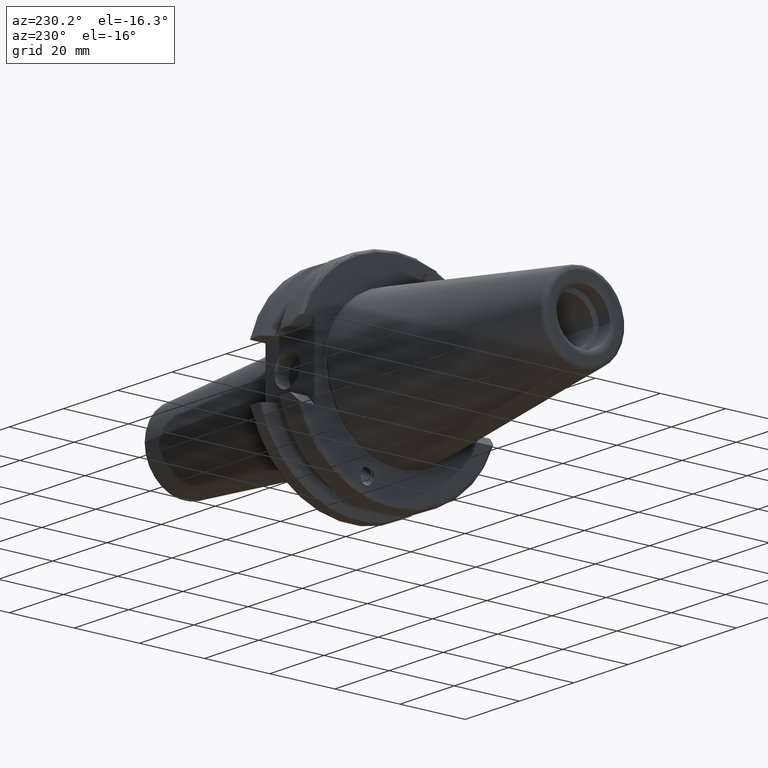
[diagram: clean part render]
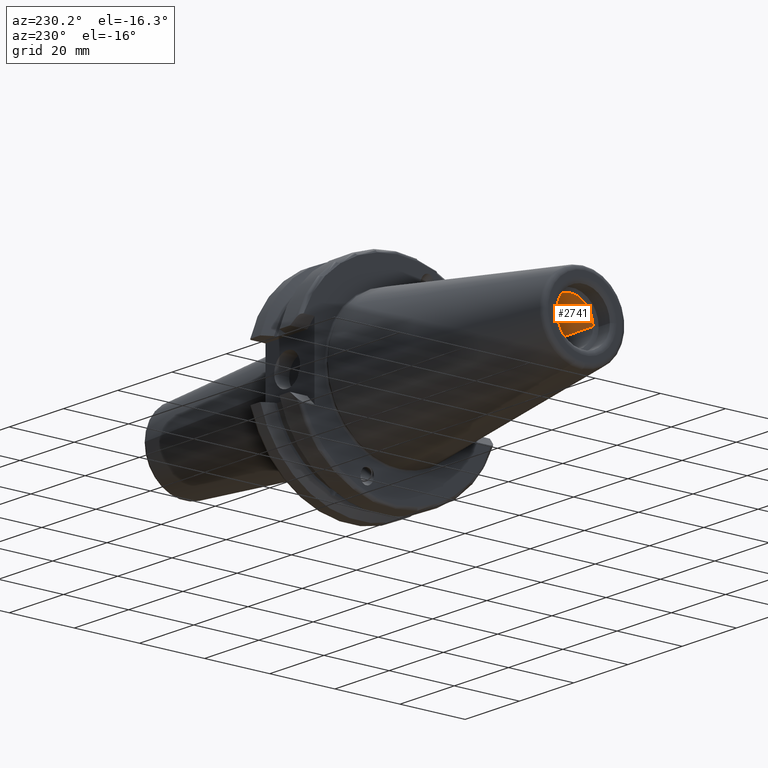
[diagram: same view with one face highlighted and labeled with its STEP entity id]
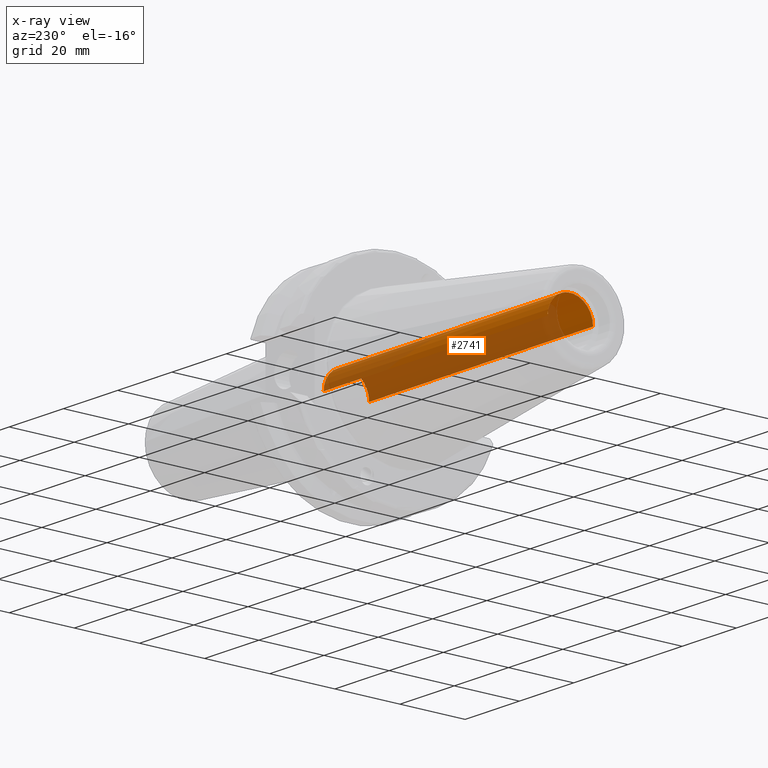
[diagram: x-ray of the same camera — body ghosted, the highlighted face saturated]
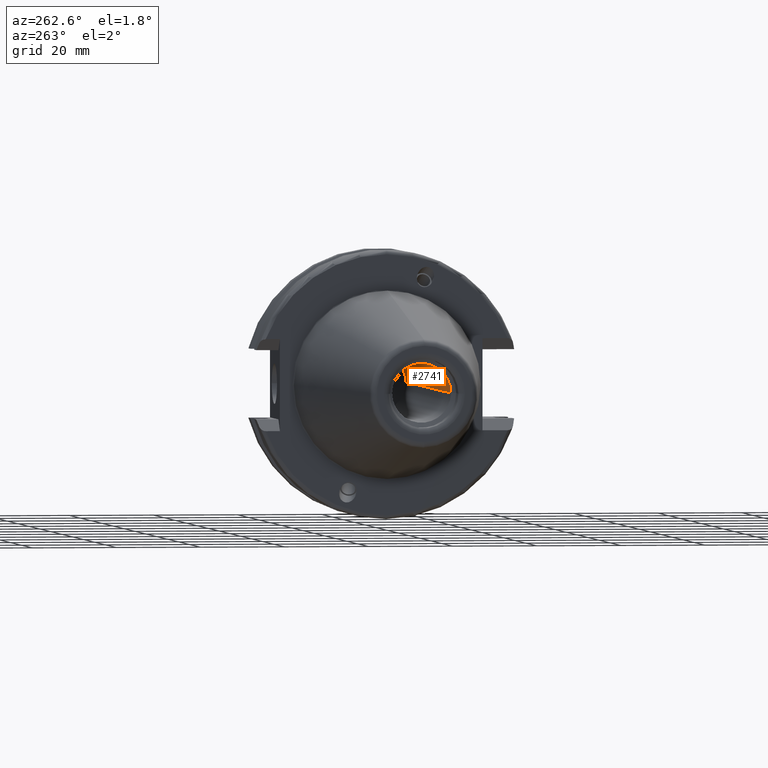
[diagram: same view with one face highlighted and labeled with its STEP entity id]
A machine part, auxiliary view. The second image highlights one B-rep face of the part: STEP entity #2741.
The next image is the same camera in x-ray: the body ghosted, the highlighted face saturated — about 64% of this face is hidden behind the body in this view.
A second angle (auxiliary view) of the same face is appended — the face is thin or edge-on in the first view.
In plain terms, the highlighted cylindrical surface (edge-blend (fillet) strip) has radius 6.9977 mm, axis along (-1, 0, 0).
Its self-contained STEP definition (entity closure, byte-faithful):
#180=CARTESIAN_POINT('',(-2.471730562752E0,0.E0,0.E0));
#181=DIRECTION('',(1.E0,0.E0,0.E0));
#182=DIRECTION('',(0.E0,1.E0,0.E0));
#183=AXIS2_PLACEMENT_3D('',#180,#181,#182);
#195=DIRECTION('',(-1.E0,0.E0,0.E0));
#196=VECTOR('',#195,3.249730562752E0);
#197=CARTESIAN_POINT('',(7.78E-1,2.755E-1,0.E0));
#198=LINE('',#197,#196);
#199=DIRECTION('',(-1.E0,0.E0,0.E0));
#200=VECTOR('',#199,3.249730562752E0);
#201=CARTESIAN_POINT('',(7.78E-1,-2.755E-1,0.E0));
#202=LINE('',#201,#200);
#203=CARTESIAN_POINT('',(7.78E-1,0.E0,0.E0));
#204=DIRECTION('',(1.E0,0.E0,0.E0));
#205=DIRECTION('',(0.E0,1.E0,0.E0));
#206=AXIS2_PLACEMENT_3D('',#203,#204,#205);
#1346=CARTESIAN_POINT('',(4.38E-1,-3.052667585783E-2,2.738035282115E-1));
#1347=CARTESIAN_POINT('',(4.447517106194E-1,-3.052667585783E-2,
2.738035282115E-1));
#1348=CARTESIAN_POINT('',(4.582872162450E-1,-3.269973660048E-2,
2.735745740243E-1));
#1349=CARTESIAN_POINT('',(4.767339735233E-1,-4.219869935550E-2,
2.723409029268E-1));
#1350=CARTESIAN_POINT('',(4.914003805057E-1,-5.682798649323E-2,
2.697523775397E-1));
#1351=CARTESIAN_POINT('',(5.007949423551E-1,-7.484638005194E-2,
2.653830958982E-1));
#1352=CARTESIAN_POINT('',(5.040327705908E-1,-9.424217385458E-2,
2.591550144813E-1));
#1353=CARTESIAN_POINT('',(5.008375122836E-1,-1.131356187327E-1,
2.514574067056E-1));
#1354=CARTESIAN_POINT('',(4.914819118759E-1,-1.297513079229E-1,
2.432289043460E-1));
#1355=CARTESIAN_POINT('',(4.768844462100E-1,-1.426449622312E-1,
2.358036585441E-1));
#1356=CARTESIAN_POINT('',(4.583134756853E-1,-1.508056942616E-1,
2.305868283659E-1));
#1357=CARTESIAN_POINT('',(4.447564880162E-1,-1.526127250150E-1,
2.293678402991E-1));
#1358=CARTESIAN_POINT('',(4.38E-1,-1.526127250150E-1,2.293678402991E-1));
#1489=CARTESIAN_POINT('',(4.38E-1,-1.526127250150E-1,2.293678402991E-1));
#1490=CARTESIAN_POINT('',(4.312784003958E-1,-1.526127250150E-1,
2.293678402991E-1));
#1491=CARTESIAN_POINT('',(4.178036814476E-1,-1.508169481070E-1,
2.305783032511E-1));
#1492=CARTESIAN_POINT('',(3.994257916357E-1,-1.428202890724E-1,
2.356942340972E-1));
#1493=CARTESIAN_POINT('',(3.847732524617E-1,-1.300582784691E-1,
2.430622479468E-1));
#1494=CARTESIAN_POINT('',(3.753258921011E-1,-1.135593368928E-1,
2.512626034336E-1));
#1495=CARTESIAN_POINT('',(3.719839128968E-1,-9.482458219573E-2,
2.589390105467E-1));
#1496=CARTESIAN_POINT('',(3.749878081723E-1,-7.550701691625E-2,
2.651960906780E-1));
#1497=CARTESIAN_POINT('',(3.841687405416E-1,-5.747432732783E-2,
2.696148531107E-1));
#1498=CARTESIAN_POINT('',(3.983855976235E-1,-4.282948443219E-2,
2.722474064358E-1));
#1499=CARTESIAN_POINT('',(4.172870315772E-1,-3.276695803015E-2,
2.735706872416E-1));
#1500=CARTESIAN_POINT('',(4.310952284829E-1,-3.052667585783E-2,
2.738035282115E-1));
#1501=CARTESIAN_POINT('',(4.38E-1,-3.052667585783E-2,2.738035282115E-1));
#2178=CARTESIAN_POINT('',(7.78E-1,2.755E-1,0.E0));
#2179=CARTESIAN_POINT('',(-2.471730562752E0,2.755E-1,0.E0));
#2180=VERTEX_POINT('',#2178);
#2181=VERTEX_POINT('',#2179);
#2182=CARTESIAN_POINT('',(7.78E-1,-2.755E-1,0.E0));
#2183=CARTESIAN_POINT('',(-2.471730562752E0,-2.755E-1,0.E0));
#2184=VERTEX_POINT('',#2182);
#2185=VERTEX_POINT('',#2183);
#2460=VERTEX_POINT('',#1489);
#2461=VERTEX_POINT('',#1501);
#2723=CARTESIAN_POINT('',(1.118262999120E0,0.E0,0.E0));
#2724=DIRECTION('',(-1.E0,0.E0,0.E0));
#2725=DIRECTION('',(0.E0,1.E0,0.E0));
#2726=AXIS2_PLACEMENT_3D('',#2723,#2724,#2725);
#2727=CYLINDRICAL_SURFACE('',#2726,2.755E-1);
#2728=ORIENTED_EDGE('',*,*,#2707,.T.);
#2729=ORIENTED_EDGE('',*,*,#2684,.T.);
#2730=ORIENTED_EDGE('',*,*,#2711,.F.);
#2732=ORIENTED_EDGE('',*,*,#2731,.F.);
#2733=EDGE_LOOP('',(#2728,#2729,#2730,#2732));
#2734=FACE_OUTER_BOUND('',#2733,.F.);
#2736=ORIENTED_EDGE('',*,*,#2735,.T.);
#2738=ORIENTED_EDGE('',*,*,#2737,.T.);
#2739=EDGE_LOOP('',(#2736,#2738));
#2740=FACE_BOUND('',#2739,.F.);
#2741=ADVANCED_FACE('',(#2734,#2740),#2727,.F.);
#184=CIRCLE('',#183,2.755E-1);
#207=CIRCLE('',#206,2.755E-1);
#1359=B_SPLINE_CURVE_WITH_KNOTS('',3,(#1346,#1347,#1348,#1349,#1350,#1351,#1352,
#1353,#1354,#1355,#1356,#1357,#1358),.UNSPECIFIED.,.F.,.F.,(4,1,1,1,1,1,1,1,1,1,
4),(0.E0,1.E-1,2.E-1,3.E-1,4.E-1,5.E-1,6.E-1,7.E-1,8.E-1,9.E-1,1.E0),
.UNSPECIFIED.);
#1502=B_SPLINE_CURVE_WITH_KNOTS('',3,(#1489,#1490,#1491,#1492,#1493,#1494,#1495,
#1496,#1497,#1498,#1499,#1500,#1501),.UNSPECIFIED.,.F.,.F.,(4,1,1,1,1,1,1,1,1,1,
4),(0.E0,1.E-1,2.E-1,3.E-1,4.E-1,5.E-1,6.E-1,7.E-1,8.E-1,9.E-1,1.E0),
.UNSPECIFIED.);
#2684=EDGE_CURVE('',#2181,#2185,#184,.T.);
#2707=EDGE_CURVE('',#2180,#2181,#198,.T.);
#2711=EDGE_CURVE('',#2184,#2185,#202,.T.);
#2731=EDGE_CURVE('',#2180,#2184,#207,.T.);
#2735=EDGE_CURVE('',#2460,#2461,#1502,.T.);
#2737=EDGE_CURVE('',#2461,#2460,#1359,.T.);